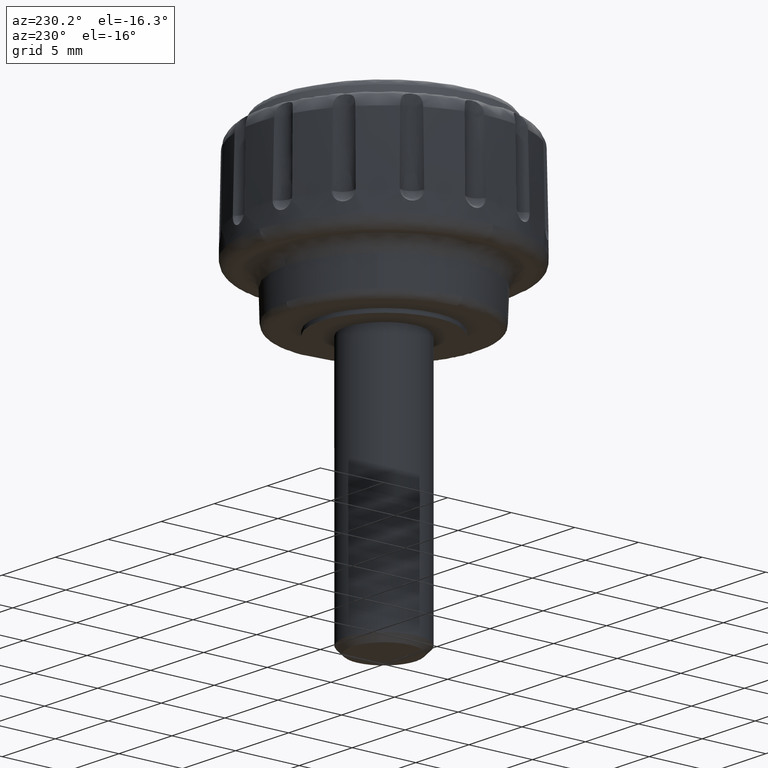
[diagram: clean part render]
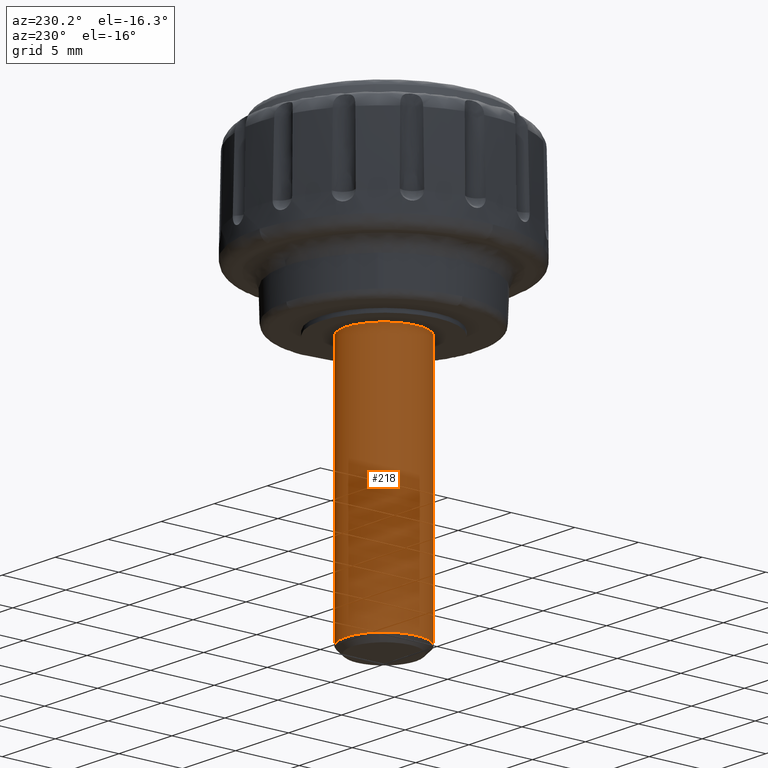
[diagram: same view with one face highlighted and labeled with its STEP entity id]
A machine part, auxiliary view. The second image highlights one B-rep face of the part: STEP entity #218.
In plain terms, the highlighted face is a freeform B-spline surface patch.
Its self-contained STEP definition (entity closure, byte-faithful):
#44=CARTESIAN_POINT('',(-1.937226115146076,-2.290666928821395,0.487599325397299));
#45=CARTESIAN_POINT('',(-2.002784018511870,-2.235224349694545,0.487599325397299));
#46=CARTESIAN_POINT('',(-2.065063727081261,-2.176123113036862,0.487599325397299));
#47=CARTESIAN_POINT('',(-4.241186840118123,-0.111059385955601,0.487599325397299));
#48=CARTESIAN_POINT('',(-2.176123113036862,2.065063727081261,0.487599325397299));
#49=CARTESIAN_POINT('',(-0.111059385955601,4.241186840118123,0.487599325397299));
#50=CARTESIAN_POINT('',(2.065063727081261,2.176123113036862,0.487599325397299));
#51=CARTESIAN_POINT('',(4.241186840118123,0.111059385955601,0.487599325397299));
#52=CARTESIAN_POINT('',(2.176123113036862,-2.065063727081261,0.487599325397299));
#53=CARTESIAN_POINT('',(-1.937226115146076,-2.290666928821395,-20.003762324424187));
#54=CARTESIAN_POINT('',(-2.002784018511870,-2.235224349694545,-20.003762324424187));
#55=CARTESIAN_POINT('',(-2.065063727081261,-2.176123113036862,-20.003762324424191));
#56=CARTESIAN_POINT('',(-4.241186840118123,-0.111059385955601,-20.003762324424191));
#57=CARTESIAN_POINT('',(-2.176123113036862,2.065063727081261,-20.003762324424191));
#58=CARTESIAN_POINT('',(-0.111059385955601,4.241186840118123,-20.003762324424191));
#59=CARTESIAN_POINT('',(2.065063727081261,2.176123113036862,-20.003762324424191));
#60=CARTESIAN_POINT('',(4.241186840118123,0.111059385955601,-20.003762324424191));
#61=CARTESIAN_POINT('',(2.176123113036862,-2.065063727081261,-20.003762324424191));
#69=(BOUNDED_SURFACE()B_SPLINE_SURFACE(2,1,((#44,#53),(#45,#54),(#46,#55),(#47,#56),(#48,#57),(#49,#58),(#50,#59),(#51,#60),(#52,#61)),.UNSPECIFIED.,.F.,.F.,.U.)B_SPLINE_SURFACE_WITH_KNOTS((3,2,2,2,3),(2,2),(0.0,0.198822509939086,5.169385258416225,10.139948006893370,15.110510755370500),(0.0,20.491361649821489),.UNSPECIFIED.)GEOMETRIC_REPRESENTATION_ITEM()RATIONAL_B_SPLINE_SURFACE(((0.977505800795127,0.977505800795127),(0.988284271247462,0.988284271247462),(1.0,1.0),(0.707106781186548,0.707106781186548),(1.0,1.0),(0.707106781186548,0.707106781186548),(1.0,1.0),(0.707106781186548,0.707106781186548),(1.0,1.0)))REPRESENTATION_ITEM('')SURFACE());
#70=CARTESIAN_POINT('',(-1.937226206280446,-2.290667029253788,-19.503973015892139));
#71=VERTEX_POINT('',#70);
#72=CARTESIAN_POINT('',(-3.0,0.0,-19.503973015891951));
#73=VERTEX_POINT('',#72);
#74=CARTESIAN_POINT('',(-1.937226206280446,-2.290667029253788,-19.503973015892139));
#75=CARTESIAN_POINT('',(-2.113467608284301,-2.141678976584614,-19.503973015892129));
#76=CARTESIAN_POINT('',(-2.403234610485446,-1.832648273211211,-19.503973015892139));
#77=CARTESIAN_POINT('',(-2.734413204146709,-1.283929866146665,-19.503973015891962));
#78=CARTESIAN_POINT('',(-2.948060996039171,-0.678735548769845,-19.503973015892200));
#79=CARTESIAN_POINT('',(-3.000043063455670,-0.230778900479850,-19.503973015891830));
#80=CARTESIAN_POINT('',(-3.0,0.0,-19.503973015891951));
#81=B_SPLINE_CURVE_WITH_KNOTS('',3,(#74,#75,#76,#77,#78,#79,#80),.UNSPECIFIED.,.F.,.U.,(4,1,1,1,4),(2.174657E-009,0.692331632101900,1.262487277350180,1.914093304171799,2.606424934098240),.UNSPECIFIED.);
#82=EDGE_CURVE('',#71,#73,#81,.T.);
#83=ORIENTED_EDGE('',*,*,#82,.F.);
#84=CARTESIAN_POINT('',(-1.937226206235179,-2.290667029292070,-4.827028E-016));
#85=VERTEX_POINT('',#84);
#86=CARTESIAN_POINT('',(-1.937226206235179,-2.290667029292070,-4.827028E-016));
#87=CARTESIAN_POINT('',(-1.937226206280446,-2.290667029253788,-19.503973015892139));
#88=QUASI_UNIFORM_CURVE('',1,(#86,#87),.UNSPECIFIED.,.F.,.U.);
#89=EDGE_CURVE('',#85,#71,#88,.T.);
#90=ORIENTED_EDGE('',*,*,#89,.F.);
#91=CARTESIAN_POINT('',(-3.0,0.0,0.0));
#92=VERTEX_POINT('',#91);
#93=CARTESIAN_POINT('',(-1.937226206235179,-2.290667029292070,-4.827028E-016));
#94=CARTESIAN_POINT('',(-2.154979161168037,-2.106654961308721,-4.439267E-016));
#95=CARTESIAN_POINT('',(-2.437147041885771,-1.788718464698742,-3.769293E-016));
#96=CARTESIAN_POINT('',(-2.725710655489220,-1.279747704621049,-2.696759E-016));
#97=CARTESIAN_POINT('',(-2.935654023436814,-0.732998770667889,-1.544618E-016));
#98=CARTESIAN_POINT('',(-3.000108271968622,-0.285089053511539,-6.007564E-017));
#99=CARTESIAN_POINT('',(-3.0,0.0,0.0));
#100=B_SPLINE_CURVE_WITH_KNOTS('',3,(#93,#94,#95,#96,#97,#98,#99),.UNSPECIFIED.,.F.,.U.,(4,1,1,1,4),(2.174409E-009,0.855233348094707,1.262487277378778,1.751191588241471,2.606424934157527),.UNSPECIFIED.);
#101=EDGE_CURVE('',#85,#92,#100,.T.);
#102=ORIENTED_EDGE('',*,*,#101,.T.);
#103=CARTESIAN_POINT('',(0.000000549770906,2.999999999999949,0.0));
#104=VERTEX_POINT('',#103);
#105=CARTESIAN_POINT('',(-3.0,0.0,0.0));
#106=CARTESIAN_POINT('',(-3.000009502651876,0.159532377987459,0.0));
#107=CARTESIAN_POINT('',(-2.975468978291715,0.466322820340641,0.0));
#108=CARTESIAN_POINT('',(-2.856078494010525,0.969166206017829,0.0));
#109=CARTESIAN_POINT('',(-2.668712368882112,1.398970322860338,0.0));
#110=CARTESIAN_POINT('',(-2.416398957828594,1.792000856917952,0.0));
#111=CARTESIAN_POINT('',(-2.131209108680714,2.130970438089582,0.0));
#112=CARTESIAN_POINT('',(-1.755969805006178,2.450658388715324,0.0));
#113=CARTESIAN_POINT('',(-1.279057836911568,2.732558831234714,0.0));
#114=CARTESIAN_POINT('',(-0.699469028174800,2.943959661274301,0.0));
#115=CARTESIAN_POINT('',(-0.245441499370393,3.000063366196068,0.0));
#116=CARTESIAN_POINT('',(0.000000549770906,2.999999999999949,0.0));
#117=B_SPLINE_CURVE_WITH_KNOTS('',3,(#105,#106,#107,#108,#109,#110,#111,#112,#113,#114,#115,#116),.UNSPECIFIED.,.F.,.U.,(4,1,1,1,1,1,1,1,1,4),(0.000000012971639,0.478598128458286,0.920391409651119,1.546264587731483,1.877605020107162,2.319396819421259,2.871625827179975,3.350233085947373,3.976107245654407,4.712418858487425),.UNSPECIFIED.);
#118=EDGE_CURVE('',#92,#104,#117,.T.);
#119=ORIENTED_EDGE('',*,*,#118,.T.);
#120=CARTESIAN_POINT('',(3.0,0.0,0.0));
#121=VERTEX_POINT('',#120);
#122=CARTESIAN_POINT('',(0.000000549770906,2.999999999999949,0.0));
#123=CARTESIAN_POINT('',(0.159532666682713,3.000010263295427,0.0));
#124=CARTESIAN_POINT('',(0.490868857720135,2.973511678499971,0.0));
#125=CARTESIAN_POINT('',(0.968791439510221,2.853805388258353,0.0));
#126=CARTESIAN_POINT('',(1.487938913356061,2.627520772164350,0.0));
#127=CARTESIAN_POINT('',(1.893732053751304,2.345441572008597,0.0));
#128=CARTESIAN_POINT('',(2.263061058017930,1.985026434119731,0.0));
#129=CARTESIAN_POINT('',(2.533865872363374,1.633610888574638,0.0));
#130=CARTESIAN_POINT('',(2.792029936045507,1.143435596561545,0.0));
#131=CARTESIAN_POINT('',(2.960114938239816,0.601315426968502,0.0));
#132=CARTESIAN_POINT('',(3.000019864180026,0.196347946576341,0.0));
#133=CARTESIAN_POINT('',(3.0,0.0,0.0));
#134=B_SPLINE_CURVE_WITH_KNOTS('',3,(#122,#123,#124,#125,#126,#127,#128,#129,#130,#131,#132,#133),.UNSPECIFIED.,.F.,.U.,(4,1,1,1,1,1,1,1,1,4),(0.000000013164776,0.478598065711290,0.994023863274534,1.472631566357928,2.172140512994785,2.466648161184654,3.018886957820339,3.497497791979680,4.123372365790686,4.712418238763585),.UNSPECIFIED.);
#135=EDGE_CURVE('',#104,#121,#134,.T.);
#136=ORIENTED_EDGE('',*,*,#135,.T.);
#137=CARTESIAN_POINT('',(2.176123025454550,-2.065063619978877,-4.718448E-016));
#138=VERTEX_POINT('',#137);
#139=CARTESIAN_POINT('',(3.0,0.0,0.0));
#140=CARTESIAN_POINT('',(3.000028378710647,-0.201669739378967,-4.607936E-017));
#141=CARTESIAN_POINT('',(2.960377086344831,-0.593129210455818,-1.355236E-016));
#142=CARTESIAN_POINT('',(2.796715591086374,-1.128749702167194,-2.579071E-016));
#143=CARTESIAN_POINT('',(2.541068479558952,-1.626405164760123,-3.716161E-016));
#144=CARTESIAN_POINT('',(2.314965534485951,-1.918798342498144,-4.384247E-016));
#145=CARTESIAN_POINT('',(2.176123025454550,-2.065063619978877,-4.718448E-016));
#146=B_SPLINE_CURVE_WITH_KNOTS('',3,(#139,#140,#141,#142,#143,#144,#145),.UNSPECIFIED.,.F.,.U.,(4,1,1,1,4),(4.852642E-009,0.605005687789759,1.174419915730051,1.672662275888484,2.277667958822673),.UNSPECIFIED.);
#147=EDGE_CURVE('',#121,#138,#146,.T.);
#148=ORIENTED_EDGE('',*,*,#147,.T.);
#149=CARTESIAN_POINT('',(2.176123025601595,-2.065063619823924,-19.503973015891798));
#150=VERTEX_POINT('',#149);
#151=CARTESIAN_POINT('',(2.176123025454550,-2.065063619978877,-4.718448E-016));
#152=CARTESIAN_POINT('',(2.176123025601595,-2.065063619823924,-19.503973015891798));
#153=QUASI_UNIFORM_CURVE('',1,(#151,#152),.UNSPECIFIED.,.F.,.U.);
#154=EDGE_CURVE('',#138,#150,#153,.T.);
#155=ORIENTED_EDGE('',*,*,#154,.T.);
#156=CARTESIAN_POINT('',(3.0,0.0,-19.503973015891951));
#157=VERTEX_POINT('',#156);
#158=CARTESIAN_POINT('',(3.0,0.0,-19.503973015891951));
#159=CARTESIAN_POINT('',(3.000015568732756,-0.177942440067082,-19.503973015891940));
#160=CARTESIAN_POINT('',(2.967184582167698,-0.545682959717638,-19.503973015891901));
#161=CARTESIAN_POINT('',(2.803474911728292,-1.130957376459073,-19.503973015891901));
#162=CARTESIAN_POINT('',(2.529842848021628,-1.648437900782952,-19.503973015891770));
#163=CARTESIAN_POINT('',(2.282276965917530,-1.953200378046700,-19.503973015891880));
#164=CARTESIAN_POINT('',(2.176123025601595,-2.065063619823924,-19.503973015891798));
#165=B_SPLINE_CURVE_WITH_KNOTS('',3,(#158,#159,#160,#161,#162,#163,#164),.UNSPECIFIED.,.F.,.U.,(4,1,1,1,4),(4.852845E-009,0.533828298853539,1.103248047836214,1.815017790652529,2.277667958609051),.UNSPECIFIED.);
#166=EDGE_CURVE('',#157,#150,#165,.T.);
#167=ORIENTED_EDGE('',*,*,#166,.F.);
#168=CARTESIAN_POINT('',(2.026770761967656,2.211832162253885,-19.503972947434271));
#169=VERTEX_POINT('',#168);
#170=CARTESIAN_POINT('',(2.026770761967656,2.211832162253885,-19.503972947434271));
#171=CARTESIAN_POINT('',(2.179605437505262,2.071835194831064,-19.503972951767270));
#172=CARTESIAN_POINT('',(2.386918344150156,1.837931016754578,-19.503972959006781));
#173=CARTESIAN_POINT('',(2.638888355682125,1.444788744856351,-19.503972971174729));
#174=CARTESIAN_POINT('',(2.827234608769532,1.045196615609252,-19.503972983542560));
#175=CARTESIAN_POINT('',(2.967014320602272,0.544047927550442,-19.503972999053001));
#176=CARTESIAN_POINT('',(3.000018416543111,0.181351237372800,-19.503973010279360));
#177=CARTESIAN_POINT('',(3.0,0.0,-19.503973015891951));
#178=B_SPLINE_CURVE_WITH_KNOTS('',3,(#170,#171,#172,#173,#174,#175,#176,#177),.UNSPECIFIED.,.F.,.U.,(4,1,1,1,1,4),(2.564933E-009,0.621778028929864,0.932668882654770,1.398998273739687,1.943056866100591,2.487111656883340),.UNSPECIFIED.);
#179=EDGE_CURVE('',#169,#157,#178,.T.);
#180=ORIENTED_EDGE('',*,*,#179,.F.);
#181=CARTESIAN_POINT('',(0.000000549770906,2.999999999999949,-19.503973015891951));
#182=VERTEX_POINT('',#181);
#183=CARTESIAN_POINT('',(0.000000549770906,2.999999999999949,-19.503973015891951));
#184=CARTESIAN_POINT('',(0.173852196581004,3.000014854020161,-19.503973010019820));
#185=CARTESIAN_POINT('',(0.533142257240224,2.968684470911210,-19.503972997884159));
#186=CARTESIAN_POINT('',(1.015982311513227,2.836847369824314,-19.503972981575451));
#187=CARTESIAN_POINT('',(1.533723403124111,2.600115796581672,-19.503972964087762));
#188=CARTESIAN_POINT('',(1.847362534768649,2.376320952228912,-19.503972953494131));
#189=CARTESIAN_POINT('',(2.026770761967656,2.211832162253885,-19.503972947434271));
#190=B_SPLINE_CURVE_WITH_KNOTS('',3,(#183,#184,#185,#186,#187,#188,#189),.UNSPECIFIED.,.F.,.U.,(4,1,1,1,4),(5.406666E-009,0.521555861055762,1.077886179942168,1.495126338470656,2.225306777404224),.UNSPECIFIED.);
#191=EDGE_CURVE('',#182,#169,#190,.T.);
#192=ORIENTED_EDGE('',*,*,#191,.F.);
#193=CARTESIAN_POINT('',(-2.092295833057280,2.149952768588641,-19.503973084585759));
#194=VERTEX_POINT('',#193);
#195=CARTESIAN_POINT('',(-2.092295833057280,2.149952768588641,-19.503973084585759));
#196=CARTESIAN_POINT('',(-1.902217549799127,2.335061309645076,-19.503973078345229));
#197=CARTESIAN_POINT('',(-1.531087817665484,2.610696019406008,-19.503973066160221));
#198=CARTESIAN_POINT('',(-0.942175618918240,2.866677152987175,-19.503973046825369));
#199=CARTESIAN_POINT('',(-0.446203342821077,2.979180135032246,-19.503973030541509));
#200=CARTESIAN_POINT('',(-0.132653521804709,3.000002458040381,-19.503973020247269));
#201=CARTESIAN_POINT('',(0.000000549770906,2.999999999999949,-19.503973015891951));
#202=B_SPLINE_CURVE_WITH_KNOTS('',3,(#195,#196,#197,#198,#199,#200,#201),.UNSPECIFIED.,.F.,.U.,(4,1,1,1,4),(4.043135E-009,0.795934062456195,1.374787428887296,1.917472364506110,2.315438122177429),.UNSPECIFIED.);
#203=EDGE_CURVE('',#194,#182,#202,.T.);
#204=ORIENTED_EDGE('',*,*,#203,.F.);
#205=CARTESIAN_POINT('',(-3.0,0.0,-19.503973015891951));
#206=CARTESIAN_POINT('',(-3.000031589202076,0.212233955382068,-19.503973022673119));
#207=CARTESIAN_POINT('',(-2.961417562257938,0.574262752666630,-19.503973034240360));
#208=CARTESIAN_POINT('',(-2.823129553322300,1.042521118069496,-19.503973049201910));
#209=CARTESIAN_POINT('',(-2.647980562156751,1.430071432948742,-19.503973061584620));
#210=CARTESIAN_POINT('',(-2.414568791630660,1.800899682793652,-19.503973073433020));
#211=CARTESIAN_POINT('',(-2.208612366378457,2.036771258014542,-19.503973080969669));
#212=CARTESIAN_POINT('',(-2.092295833057280,2.149952768588641,-19.503973084585759));
#213=B_SPLINE_CURVE_WITH_KNOTS('',3,(#205,#206,#207,#208,#209,#210,#211,#212),.UNSPECIFIED.,.F.,.U.,(4,1,1,1,1,4),(4.785392E-009,0.636698502357295,1.086136524183104,1.460656531177434,1.910095067133201,2.396980840458658),.UNSPECIFIED.);
#214=EDGE_CURVE('',#73,#194,#213,.T.);
#215=ORIENTED_EDGE('',*,*,#214,.F.);
#216=EDGE_LOOP('',(#83,#90,#102,#119,#136,#148,#155,#167,#180,#192,#204,#215));
#217=FACE_OUTER_BOUND('',#216,.T.);
#218=ADVANCED_FACE('',(#217),#69,.T.);